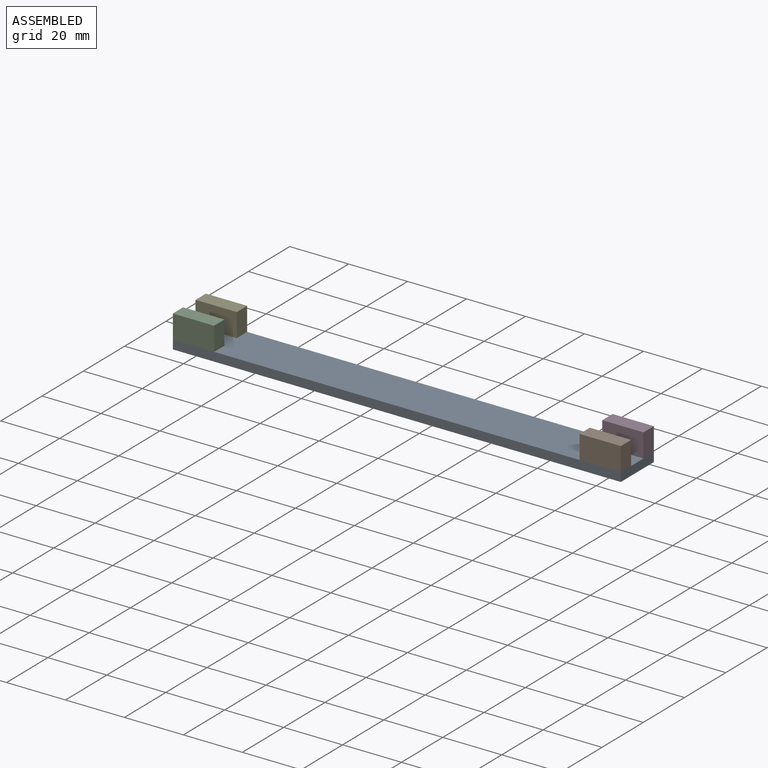
[diagram: assembled view]
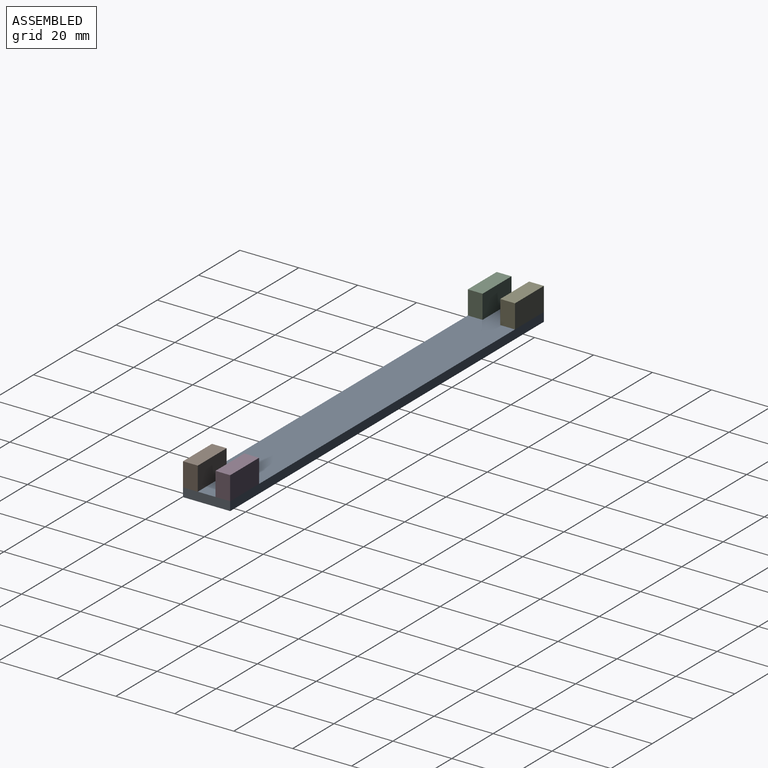
[diagram: assembled view, second angle]
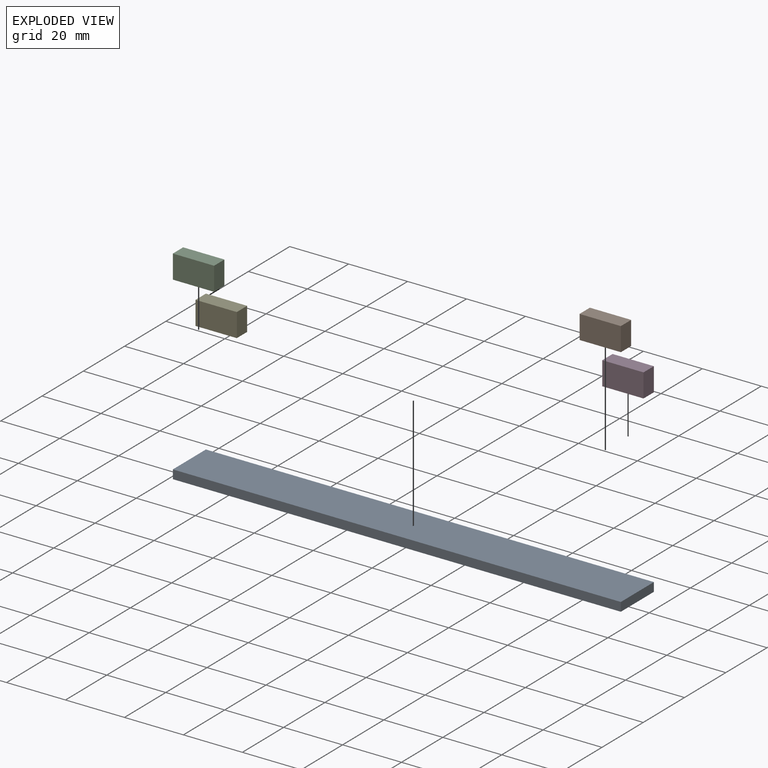
[diagram: exploded view]
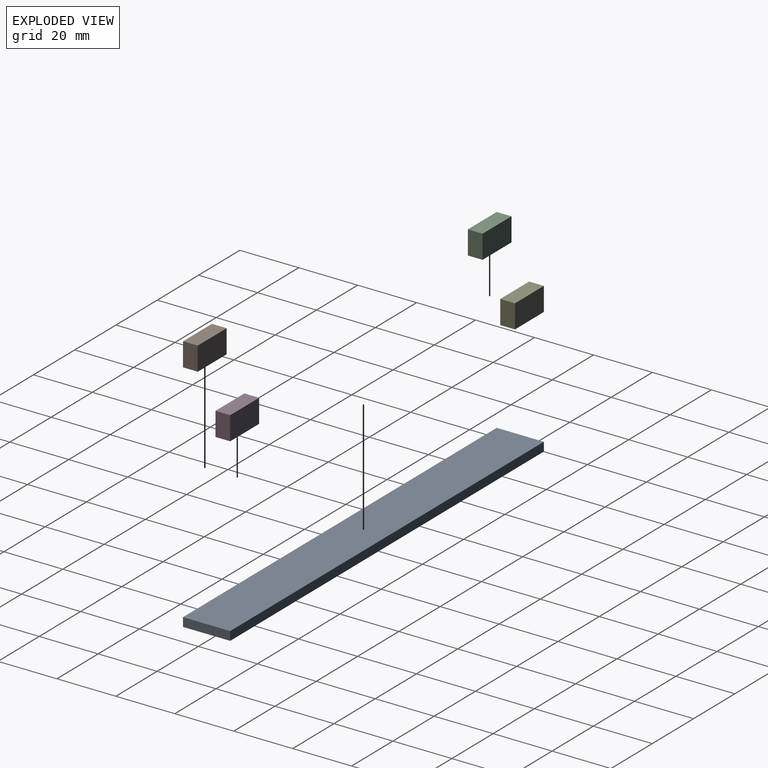
[diagram: exploded view, second angle]
ASSEMBLY  parts=5 mates=4
PART A: 6 faces, bbox 152x16x3 mm
  f0: plane 16x3mm, normal (-1,0,0), area 48mm2, adj f1,f3,f4,f5
  f1: plane 152x3mm, normal (0,-1,0), area 456mm2, adj f0,f2,f4,f5
  f2: plane 16x3mm, normal (1,0,0), area 48mm2, adj f1,f3,f4,f5
  f3: plane 152x3mm, normal (0,1,0), area 456mm2, adj f0,f2,f4,f5
  f4: plane 152x16mm, normal (0,0,1), area 2432mm2, adj f0,f1,f2,f3
  f5: plane 152x16mm, normal (0,0,-1), area 2432mm2, adj f0,f1,f2,f3
PART B: 6 faces, bbox 14x5x8 mm
  f0: plane 8x5mm, normal (-1,0,0), area 40mm2, adj f1,f3,f4,f5
  f1: plane 14x8mm, normal (0,-1,0), area 112mm2, adj f0,f2,f4,f5
  f2: plane 8x5mm, normal (1,0,0), area 40mm2, adj f1,f3,f4,f5
  f3: plane 14x8mm, normal (0,1,0), area 112mm2, adj f0,f2,f4,f5
  f4: plane 14x5mm, normal (0,0,1), area 70mm2, adj f0,f1,f2,f3
  f5: plane 14x5mm, normal (0,0,-1), area 70mm2, adj f0,f1,f2,f3
PART C: same geometry as B
PART D: same geometry as B
PART E: same geometry as B
PLACE A at identity fixed
PLACE B t=(69,-5.5,3)mm
PLACE C t=(-69,-5.5,3)mm
PLACE D t=(69,5.5,3)mm
PLACE E t=(-69,5.5,3)mm
MATE fastened A.f4 <-> D.f5  axis (0,0,1) through (76,8,3)mm
MATE fastened E.f0 <-> A.f0  axis (-1,0,0) through (-76,8,3)mm
MATE fastened B.f5 <-> A.f4  axis (0,0,1) through (76,-8,3)mm
MATE fastened A.f4 <-> C.f5  axis (0,0,1) through (-76,-8,3)mm
